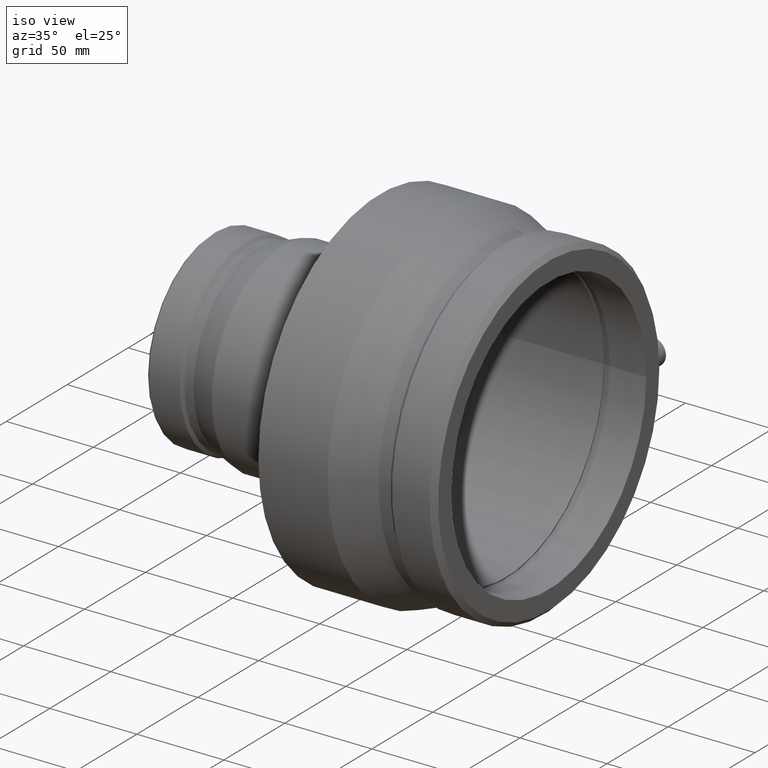
[diagram: clean part render]
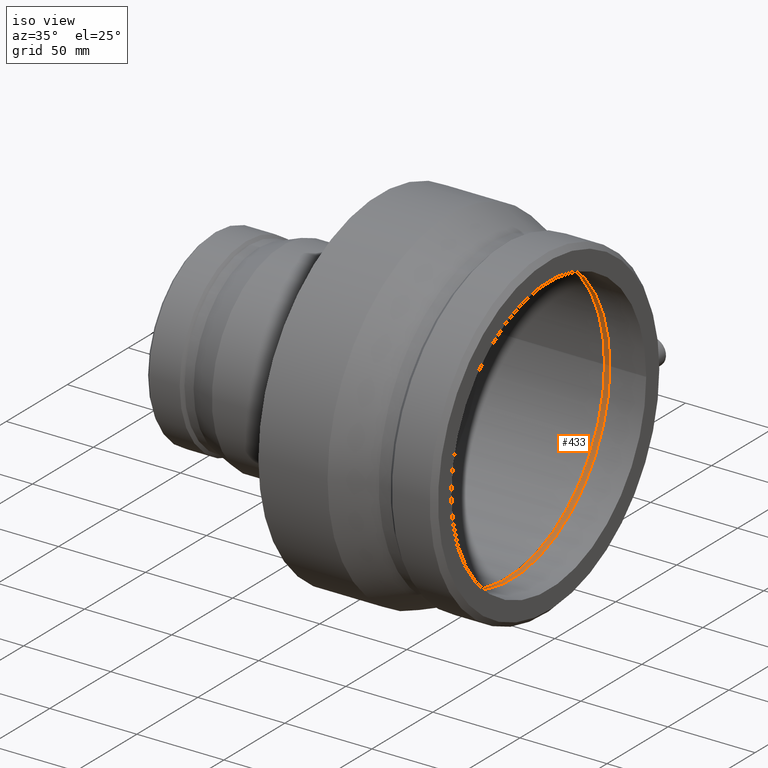
[diagram: same view with one face highlighted and labeled with its STEP entity id]
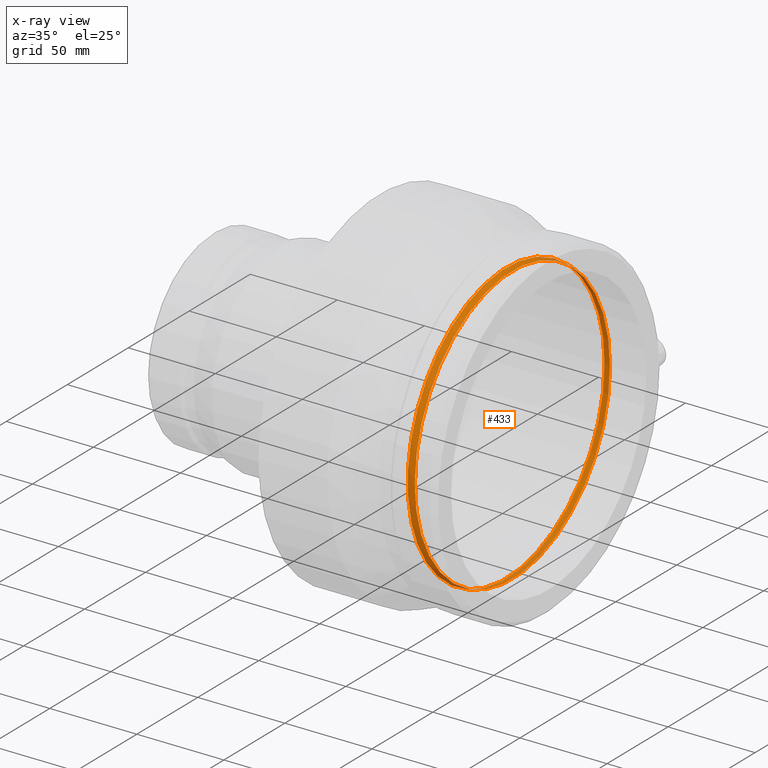
[diagram: x-ray of the same camera — body ghosted, the highlighted face saturated]
A machine part, iso view. The second image highlights one B-rep face of the part: STEP entity #433.
The next image is the same camera in x-ray: the body ghosted, the highlighted face saturated — about 3% of this face is hidden behind the body in this view.
In plain terms, the highlighted conical surface has half-angle 12 deg.
Its self-contained STEP definition (entity closure, byte-faithful):
#26=CONICAL_SURFACE('',#501,80.382601811006,12.);
#57=FACE_BOUND('',#179,.T.);
#111=FACE_OUTER_BOUND('',#178,.T.);
#178=EDGE_LOOP('',(#371));
#179=EDGE_LOOP('',(#372));
#226=CIRCLE('',#500,80.);
#227=CIRCLE('',#502,80.7652036220121);
#265=VERTEX_POINT('',#827);
#266=VERTEX_POINT('',#830);
#304=EDGE_CURVE('',#265,#265,#226,.T.);
#305=EDGE_CURVE('',#266,#266,#227,.T.);
#371=ORIENTED_EDGE('',*,*,#304,.T.);
#372=ORIENTED_EDGE('',*,*,#305,.F.);
#433=ADVANCED_FACE('',(#111,#57),#26,.F.);
#500=AXIS2_PLACEMENT_3D('',#828,#632,#633);
#501=AXIS2_PLACEMENT_3D('',#829,#634,#635);
#502=AXIS2_PLACEMENT_3D('',#831,#636,#637);
#632=DIRECTION('center_axis',(1.,0.,0.));
#633=DIRECTION('ref_axis',(0.,0.,-1.));
#634=DIRECTION('center_axis',(-1.,0.,0.));
#635=DIRECTION('ref_axis',(0.,1.,0.));
#636=DIRECTION('center_axis',(1.,0.,0.));
#637=DIRECTION('ref_axis',(0.,0.,-1.));
#827=CARTESIAN_POINT('',(75.6459,80.,0.));
#828=CARTESIAN_POINT('Origin',(75.6459,0.,0.));
#829=CARTESIAN_POINT('Origin',(73.8459,0.,0.));
#830=CARTESIAN_POINT('',(72.0459,80.7652036220121,0.));
#831=CARTESIAN_POINT('Origin',(72.0459,0.,0.));